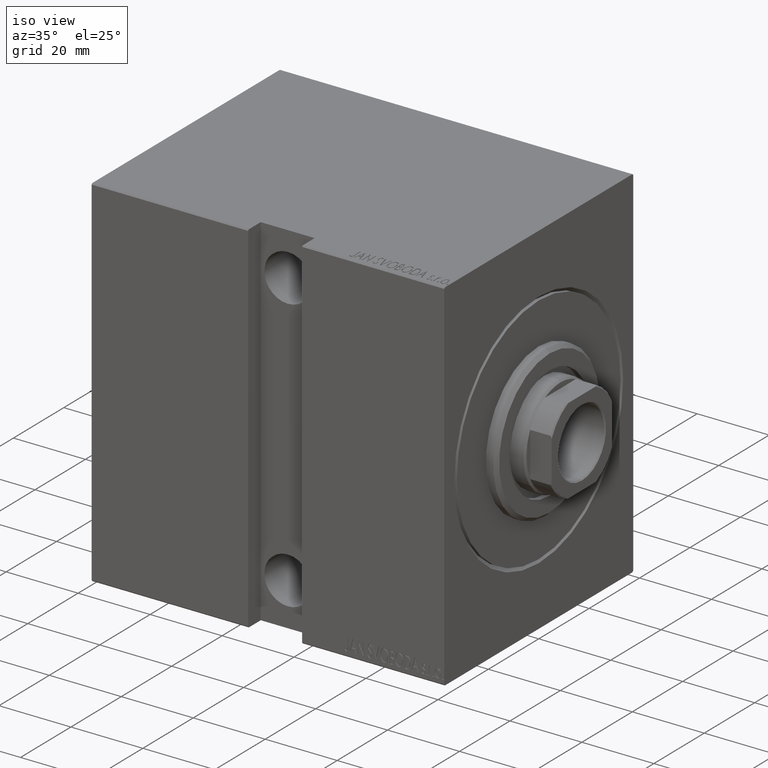
[diagram: clean part render]
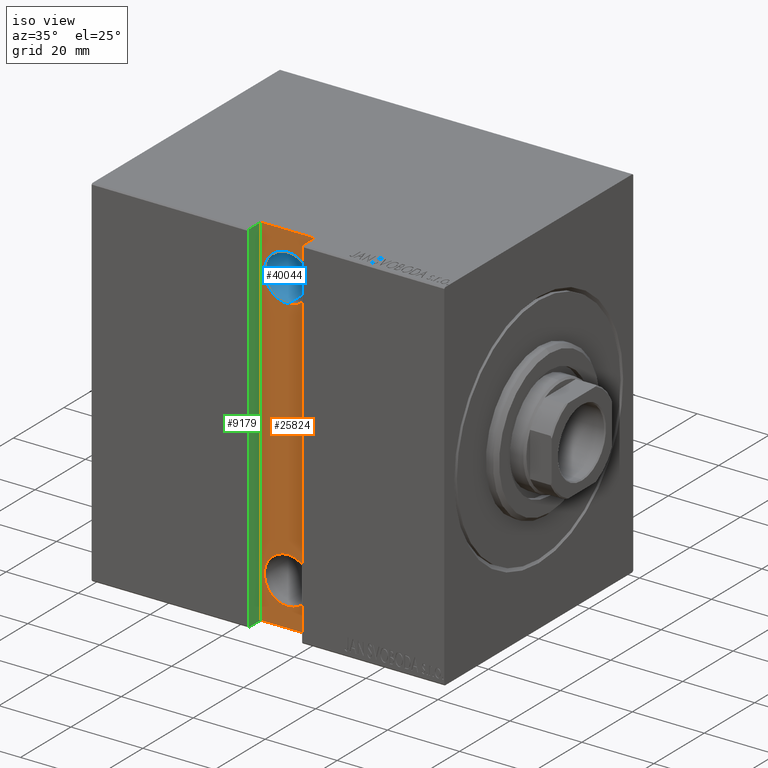
[diagram: same view with three faces highlighted in distinct colors, each labeled with its STEP entity id]
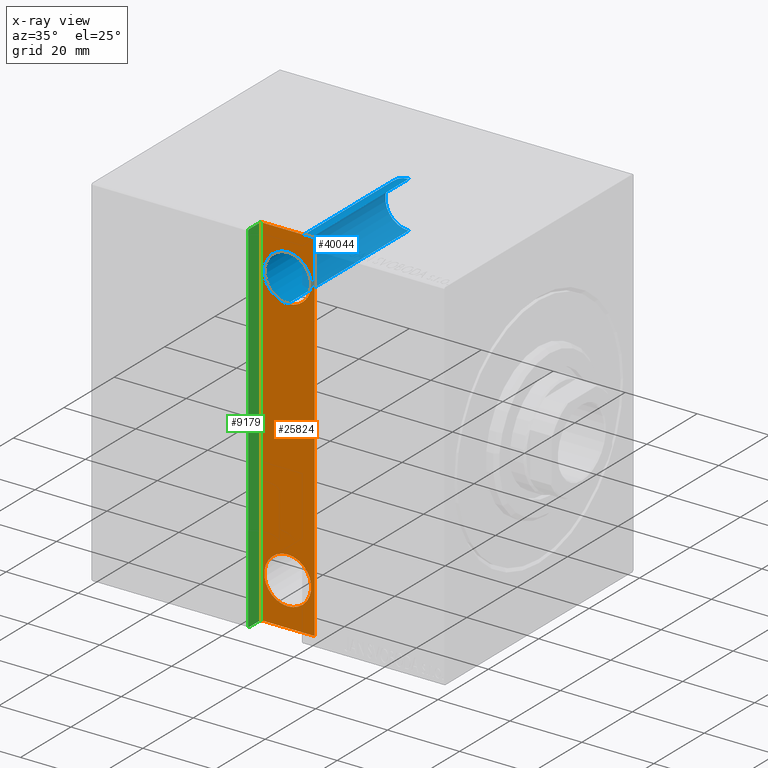
[diagram: x-ray of the same camera — body ghosted, the three highlighted faces saturated]
A machine part, iso view with three faces highlighted in distinct colors.
The next image is the same camera in x-ray (body ghosted, the three faces saturated) — at least one of them is partly hidden behind the body in this view.
Their STEP definitions:

[orange] entity #25824 — the highlighted planar face has unit normal (0, 1, 0).
#739 = LINE ( 'NONE', #24131, #28036 ) ;
#1564 = DIRECTION ( 'NONE',  ( 0.000000000000000000, -1.000000000000000000, 0.000000000000000000 ) ) ;
#1667 = AXIS2_PLACEMENT_3D ( 'NONE', #19981, #33214, #37094 ) ;
#3228 = LINE ( 'NONE', #33323, #28962 ) ;
#3659 = VERTEX_POINT ( 'NONE', #38447 ) ;
#4225 = DIRECTION ( 'NONE',  ( 0.000000000000000000, 0.000000000000000000, -1.000000000000000000 ) ) ;
#4503 = CIRCLE ( 'NONE', #13473, 6.499999999999999112 ) ;
#5838 = DIRECTION ( 'NONE',  ( 6.938893903907228378E-17, 0.000000000000000000, 1.000000000000000000 ) ) ;
#6257 = LINE ( 'NONE', #25978, #13938 ) ;
#6602 = DIRECTION ( 'NONE',  ( 0.000000000000000000, -1.000000000000000000, 0.000000000000000000 ) ) ;
#7028 = DIRECTION ( 'NONE',  ( 0.000000000000000000, -0.000000000000000000, -1.000000000000000000 ) ) ;
#7031 = CARTESIAN_POINT ( 'NONE',  ( 47.00000000000002132, 32.50000000000000000, 38.00000000000000000 ) ) ;
#8052 = EDGE_LOOP ( 'NONE', ( #39468, #10896 ) ) ;
#9894 = CARTESIAN_POINT ( 'NONE',  ( 47.00000000000002132, 32.50000000000000000, 31.50000000000000000 ) ) ;
#10896 = ORIENTED_EDGE ( 'NONE', *, *, #29354, .T. ) ;
#11239 = EDGE_CURVE ( 'NONE', #3659, #26708, #739, .T. ) ;
#12270 = AXIS2_PLACEMENT_3D ( 'NONE', #31341, #21357, #15701 ) ;
#12507 = EDGE_CURVE ( 'NONE', #31063, #17094, #42592, .T. ) ;
#13200 = EDGE_LOOP ( 'NONE', ( #25257, #34950 ) ) ;
#13414 = DIRECTION ( 'NONE',  ( -1.000000000000000000, 0.000000000000000000, 0.000000000000000000 ) ) ;
#13473 = AXIS2_PLACEMENT_3D ( 'NONE', #7031, #17641, #4225 ) ;
#13938 = VECTOR ( 'NONE', #5838, 1000.000000000000000 ) ;
#15392 = VECTOR ( 'NONE', #13414, 1000.000000000000000 ) ;
#15393 = ORIENTED_EDGE ( 'NONE', *, *, #40308, .T. ) ;
#15701 = DIRECTION ( 'NONE',  ( 0.000000000000000000, 0.000000000000000000, -1.000000000000000000 ) ) ;
#15778 = CARTESIAN_POINT ( 'NONE',  ( 39.50000000000000000, 32.50000000000000000, -50.00000000000000711 ) ) ;
#16055 = ORIENTED_EDGE ( 'NONE', *, *, #11239, .T. ) ;
#16167 = VERTEX_POINT ( 'NONE', #21546 ) ;
#17094 = VERTEX_POINT ( 'NONE', #42776 ) ;
#17297 = CARTESIAN_POINT ( 'NONE',  ( 54.50000000000001421, 32.50000000000000711, -50.00000000000000711 ) ) ;
#17641 = DIRECTION ( 'NONE',  ( 0.000000000000000000, -1.000000000000000000, 0.000000000000000000 ) ) ;
#18428 = EDGE_CURVE ( 'NONE', #17094, #31063, #42711, .T. ) ;
#19981 = CARTESIAN_POINT ( 'NONE',  ( 47.00000000000002132, 32.50000000000000000, 38.00000000000000000 ) ) ;
#20305 = CIRCLE ( 'NONE', #1667, 6.499999999999999112 ) ;
#21118 = AXIS2_PLACEMENT_3D ( 'NONE', #38139, #1564, #31863 ) ;
#21357 = DIRECTION ( 'NONE',  ( 0.000000000000000000, -1.000000000000000000, 0.000000000000000000 ) ) ;
#21497 = EDGE_CURVE ( 'NONE', #16167, #3659, #3228, .T. ) ;
#21546 = CARTESIAN_POINT ( 'NONE',  ( 39.50000000000000711, 32.50000000000000000, 49.99999999999999289 ) ) ;
#21593 = CARTESIAN_POINT ( 'NONE',  ( 47.00000000000002132, 32.50000000000000000, 44.50000000000000000 ) ) ;
#22985 = ORIENTED_EDGE ( 'NONE', *, *, #37751, .T. ) ;
#23070 = CARTESIAN_POINT ( 'NONE',  ( 0.000000000000000000, 32.50000000000000000, 0.000000000000000000 ) ) ;
#24131 = CARTESIAN_POINT ( 'NONE',  ( 54.50000000000000000, 32.50000000000000000, -50.00000000000000711 ) ) ;
#25257 = ORIENTED_EDGE ( 'NONE', *, *, #18428, .T. ) ;
#25824 = ADVANCED_FACE ( 'NONE', ( #29380, #36280, #32621 ), #42796, .F. ) ;
#25978 = CARTESIAN_POINT ( 'NONE',  ( 39.50000000000000000, 32.50000000000000000, -50.00000000000000711 ) ) ;
#26708 = VERTEX_POINT ( 'NONE', #17297 ) ;
#27172 = ORIENTED_EDGE ( 'NONE', *, *, #21497, .T. ) ;
#28036 = VECTOR ( 'NONE', #40150, 1000.000000000000000 ) ;
#28962 = VECTOR ( 'NONE', #38334, 1000.000000000000000 ) ;
#29354 = EDGE_CURVE ( 'NONE', #33557, #38798, #4503, .T. ) ;
#29380 = FACE_BOUND ( 'NONE', #8052, .T. ) ;
#29680 = VERTEX_POINT ( 'NONE', #15778 ) ;
#31063 = VERTEX_POINT ( 'NONE', #36247 ) ;
#31341 = CARTESIAN_POINT ( 'NONE',  ( 47.00000000000002132, 32.50000000000000000, -38.00000000000000000 ) ) ;
#31863 = DIRECTION ( 'NONE',  ( 0.000000000000000000, 0.000000000000000000, -1.000000000000000000 ) ) ;
#32621 = FACE_OUTER_BOUND ( 'NONE', #33096, .T. ) ;
#33096 = EDGE_LOOP ( 'NONE', ( #22985, #27172, #16055, #15393 ) ) ;
#33214 = DIRECTION ( 'NONE',  ( 0.000000000000000000, -1.000000000000000000, 0.000000000000000000 ) ) ;
#33323 = CARTESIAN_POINT ( 'NONE',  ( 54.50000000000001421, 32.50000000000000000, 49.99999999999999289 ) ) ;
#33347 = CARTESIAN_POINT ( 'NONE',  ( 54.50000000000000000, 32.50000000000000000, -50.00000000000000711 ) ) ;
#33557 = VERTEX_POINT ( 'NONE', #9894 ) ;
#33571 = LINE ( 'NONE', #33347, #15392 ) ;
#34950 = ORIENTED_EDGE ( 'NONE', *, *, #12507, .T. ) ;
#36247 = CARTESIAN_POINT ( 'NONE',  ( 47.00000000000002132, 32.50000000000000000, -44.50000000000000000 ) ) ;
#36280 = FACE_BOUND ( 'NONE', #13200, .T. ) ;
#37094 = DIRECTION ( 'NONE',  ( 0.000000000000000000, 0.000000000000000000, -1.000000000000000000 ) ) ;
#37751 = EDGE_CURVE ( 'NONE', #29680, #16167, #6257, .T. ) ;
#38139 = CARTESIAN_POINT ( 'NONE',  ( 47.00000000000002132, 32.50000000000000000, -38.00000000000000000 ) ) ;
#38334 = DIRECTION ( 'NONE',  ( 1.000000000000000000, -0.000000000000000000, -0.000000000000000000 ) ) ;
#38447 = CARTESIAN_POINT ( 'NONE',  ( 54.50000000000001421, 32.50000000000000000, 49.99999999999999289 ) ) ;
#38798 = VERTEX_POINT ( 'NONE', #21593 ) ;
#39400 = AXIS2_PLACEMENT_3D ( 'NONE', #23070, #6602, #7028 ) ;
#39468 = ORIENTED_EDGE ( 'NONE', *, *, #42742, .T. ) ;
#40150 = DIRECTION ( 'NONE',  ( -1.387778780781445676E-16, -0.000000000000000000, -1.000000000000000000 ) ) ;
#40308 = EDGE_CURVE ( 'NONE', #26708, #29680, #33571, .T. ) ;
#42592 = CIRCLE ( 'NONE', #21118, 6.499999999999999112 ) ;
#42711 = CIRCLE ( 'NONE', #12270, 6.499999999999999112 ) ;
#42742 = EDGE_CURVE ( 'NONE', #38798, #33557, #20305, .T. ) ;
#42776 = CARTESIAN_POINT ( 'NONE',  ( 47.00000000000002132, 32.50000000000000000, -31.50000000000000000 ) ) ;
#42796 = PLANE ( 'NONE',  #39400 ) ;

[blue] entity #40044 — the highlighted cylindrical surface (edge-blend (fillet) strip) has radius 6.5 mm, axis along (0, -1, 0).
#1336 = CARTESIAN_POINT ( 'NONE',  ( 47.00000000000002132, -37.50000000000003553, 44.50000000000000000 ) ) ;
#2833 = AXIS2_PLACEMENT_3D ( 'NONE', #25365, #38362, #4202 ) ;
#2985 = EDGE_CURVE ( 'NONE', #24314, #38798, #36829, .T. ) ;
#4202 = DIRECTION ( 'NONE',  ( 0.000000000000000000, -2.668805347656626678E-16, -1.000000000000000000 ) ) ;
#4225 = DIRECTION ( 'NONE',  ( 0.000000000000000000, 0.000000000000000000, -1.000000000000000000 ) ) ;
#4503 = CIRCLE ( 'NONE', #13473, 6.499999999999999112 ) ;
#6402 = AXIS2_PLACEMENT_3D ( 'NONE', #9989, #33188, #20386 ) ;
#6448 = EDGE_CURVE ( 'NONE', #13165, #33557, #36414, .T. ) ;
#7031 = CARTESIAN_POINT ( 'NONE',  ( 47.00000000000002132, 32.50000000000000000, 38.00000000000000000 ) ) ;
#7181 = FACE_OUTER_BOUND ( 'NONE', #12236, .T. ) ;
#9894 = CARTESIAN_POINT ( 'NONE',  ( 47.00000000000002132, 32.50000000000000000, 31.50000000000000000 ) ) ;
#9989 = CARTESIAN_POINT ( 'NONE',  ( 47.00000000000002132, -37.50000000000003553, 38.00000000000000000 ) ) ;
#10628 = VECTOR ( 'NONE', #22567, 1000.000000000000000 ) ;
#11988 = ORIENTED_EDGE ( 'NONE', *, *, #2985, .T. ) ;
#12236 = EDGE_LOOP ( 'NONE', ( #20617, #37568, #11988, #17982 ) ) ;
#13165 = VERTEX_POINT ( 'NONE', #36383 ) ;
#13462 = CYLINDRICAL_SURFACE ( 'NONE', #6402, 6.499999999999999112 ) ;
#13473 = AXIS2_PLACEMENT_3D ( 'NONE', #7031, #17641, #4225 ) ;
#17641 = DIRECTION ( 'NONE',  ( 0.000000000000000000, -1.000000000000000000, 0.000000000000000000 ) ) ;
#17982 = ORIENTED_EDGE ( 'NONE', *, *, #29354, .F. ) ;
#20386 = DIRECTION ( 'NONE',  ( 0.000000000000000000, 0.000000000000000000, 1.000000000000000000 ) ) ;
#20617 = ORIENTED_EDGE ( 'NONE', *, *, #6448, .F. ) ;
#21593 = CARTESIAN_POINT ( 'NONE',  ( 47.00000000000002132, 32.50000000000000000, 44.50000000000000000 ) ) ;
#22567 = DIRECTION ( 'NONE',  ( -0.000000000000000000, 1.000000000000000000, -0.000000000000000000 ) ) ;
#23214 = CARTESIAN_POINT ( 'NONE',  ( 47.00000000000002132, -15.49999999999999112, 44.50000000000000000 ) ) ;
#24314 = VERTEX_POINT ( 'NONE', #23214 ) ;
#24504 = DIRECTION ( 'NONE',  ( -0.000000000000000000, 1.000000000000000000, -0.000000000000000000 ) ) ;
#25365 = CARTESIAN_POINT ( 'NONE',  ( 47.00000000000002132, -15.49999999999999289, 38.00000000000000000 ) ) ;
#29354 = EDGE_CURVE ( 'NONE', #33557, #38798, #4503, .T. ) ;
#33188 = DIRECTION ( 'NONE',  ( -0.000000000000000000, 1.000000000000000000, -0.000000000000000000 ) ) ;
#33557 = VERTEX_POINT ( 'NONE', #9894 ) ;
#33973 = CIRCLE ( 'NONE', #2833, 6.499999999999999112 ) ;
#34506 = EDGE_CURVE ( 'NONE', #24314, #13165, #33973, .T. ) ;
#35455 = VECTOR ( 'NONE', #24504, 1000.000000000000000 ) ;
#35996 = CARTESIAN_POINT ( 'NONE',  ( 47.00000000000002132, -37.50000000000003553, 31.50000000000000000 ) ) ;
#36383 = CARTESIAN_POINT ( 'NONE',  ( 47.00000000000002132, -15.49999999999999467, 31.50000000000000000 ) ) ;
#36414 = LINE ( 'NONE', #35996, #10628 ) ;
#36829 = LINE ( 'NONE', #1336, #35455 ) ;
#37568 = ORIENTED_EDGE ( 'NONE', *, *, #34506, .F. ) ;
#38362 = DIRECTION ( 'NONE',  ( -0.000000000000000000, 1.000000000000000000, -1.963837897332234442E-16 ) ) ;
#38798 = VERTEX_POINT ( 'NONE', #21593 ) ;
#40044 = ADVANCED_FACE ( 'NONE', ( #7181 ), #13462, .F. ) ;

[green] entity #9179 — the highlighted planar face has unit normal (-1, 0, -0).
#739 = LINE ( 'NONE', #24131, #28036 ) ;
#1143 = VECTOR ( 'NONE', #28378, 1000.000000000000114 ) ;
#3020 = VECTOR ( 'NONE', #24239, 1000.000000000000000 ) ;
#3659 = VERTEX_POINT ( 'NONE', #38447 ) ;
#3818 = CARTESIAN_POINT ( 'NONE',  ( 54.50000000000000000, 37.50000000000000711, -49.70000000000000284 ) ) ;
#5579 = ORIENTED_EDGE ( 'NONE', *, *, #20079, .T. ) ;
#5690 = EDGE_CURVE ( 'NONE', #30701, #13801, #14470, .T. ) ;
#5911 = EDGE_CURVE ( 'NONE', #26708, #12707, #36949, .T. ) ;
#6844 = CARTESIAN_POINT ( 'NONE',  ( 54.50000000000000000, 32.50000000000000000, -50.00000000000000711 ) ) ;
#7280 = DIRECTION ( 'NONE',  ( -9.813077866773479853E-17, -0.7071067811865556774, -0.7071067811865392461 ) ) ;
#8638 = DIRECTION ( 'NONE',  ( 1.000000000000000000, 0.000000000000000000, -1.387778780781445676E-16 ) ) ;
#9179 = ADVANCED_FACE ( 'NONE', ( #31407 ), #31617, .F. ) ;
#9498 = ORIENTED_EDGE ( 'NONE', *, *, #11239, .F. ) ;
#9656 = LINE ( 'NONE', #23301, #19158 ) ;
#10690 = AXIS2_PLACEMENT_3D ( 'NONE', #18387, #8638, #29228 ) ;
#11239 = EDGE_CURVE ( 'NONE', #3659, #26708, #739, .T. ) ;
#11892 = LINE ( 'NONE', #18815, #1143 ) ;
#12707 = VERTEX_POINT ( 'NONE', #34001 ) ;
#12973 = ORIENTED_EDGE ( 'NONE', *, *, #19154, .T. ) ;
#13801 = VERTEX_POINT ( 'NONE', #20233 ) ;
#14470 = LINE ( 'NONE', #31585, #3020 ) ;
#17297 = CARTESIAN_POINT ( 'NONE',  ( 54.50000000000001421, 32.50000000000000711, -50.00000000000000711 ) ) ;
#18387 = CARTESIAN_POINT ( 'NONE',  ( 54.50000000000000000, 32.50000000000000000, -50.00000000000000711 ) ) ;
#18815 = CARTESIAN_POINT ( 'NONE',  ( 54.50000000000001421, 37.19999999999998153, 50.00000000000001421 ) ) ;
#19154 = EDGE_CURVE ( 'NONE', #3659, #29991, #9656, .T. ) ;
#19158 = VECTOR ( 'NONE', #39566, 1000.000000000000000 ) ;
#20079 = EDGE_CURVE ( 'NONE', #13801, #12707, #23310, .T. ) ;
#20106 = ORIENTED_EDGE ( 'NONE', *, *, #5690, .T. ) ;
#20233 = CARTESIAN_POINT ( 'NONE',  ( 54.50000000000000000, 37.50000000000000000, -49.70000000000000284 ) ) ;
#23301 = CARTESIAN_POINT ( 'NONE',  ( 54.50000000000001421, 32.50000000000000000, 49.99999999999999289 ) ) ;
#23310 = LINE ( 'NONE', #3818, #38596 ) ;
#23751 = VECTOR ( 'NONE', #40209, 1000.000000000000000 ) ;
#24131 = CARTESIAN_POINT ( 'NONE',  ( 54.50000000000000000, 32.50000000000000000, -50.00000000000000711 ) ) ;
#24239 = DIRECTION ( 'NONE',  ( -1.387778780781445676E-16, -0.000000000000000000, -1.000000000000000000 ) ) ;
#24283 = CARTESIAN_POINT ( 'NONE',  ( 54.50000000000001421, 37.50000000000000000, 49.70000000000000284 ) ) ;
#26708 = VERTEX_POINT ( 'NONE', #17297 ) ;
#28036 = VECTOR ( 'NONE', #40150, 1000.000000000000000 ) ;
#28378 = DIRECTION ( 'NONE',  ( -9.813077866773709115E-17, 0.7071067811865392461, -0.7071067811865556774 ) ) ;
#28757 = CARTESIAN_POINT ( 'NONE',  ( 54.50000000000001421, 37.19999999999998153, 49.99999999999999289 ) ) ;
#29228 = DIRECTION ( 'NONE',  ( -1.387778780781445676E-16, 0.000000000000000000, -1.000000000000000000 ) ) ;
#29689 = EDGE_CURVE ( 'NONE', #29991, #30701, #11892, .T. ) ;
#29991 = VERTEX_POINT ( 'NONE', #28757 ) ;
#30701 = VERTEX_POINT ( 'NONE', #24283 ) ;
#30753 = ORIENTED_EDGE ( 'NONE', *, *, #5911, .F. ) ;
#31407 = FACE_OUTER_BOUND ( 'NONE', #41502, .T. ) ;
#31585 = CARTESIAN_POINT ( 'NONE',  ( 54.50000000000000000, 37.50000000000000000, -50.00000000000000711 ) ) ;
#31617 = PLANE ( 'NONE',  #10690 ) ;
#34001 = CARTESIAN_POINT ( 'NONE',  ( 54.50000000000000000, 37.19999999999998863, -50.00000000000000711 ) ) ;
#36949 = LINE ( 'NONE', #6844, #23751 ) ;
#38447 = CARTESIAN_POINT ( 'NONE',  ( 54.50000000000001421, 32.50000000000000000, 49.99999999999999289 ) ) ;
#38596 = VECTOR ( 'NONE', #7280, 1000.000000000000114 ) ;
#39566 = DIRECTION ( 'NONE',  ( -0.000000000000000000, 1.000000000000000000, -0.000000000000000000 ) ) ;
#39602 = ORIENTED_EDGE ( 'NONE', *, *, #29689, .T. ) ;
#40150 = DIRECTION ( 'NONE',  ( -1.387778780781445676E-16, -0.000000000000000000, -1.000000000000000000 ) ) ;
#40209 = DIRECTION ( 'NONE',  ( -0.000000000000000000, 1.000000000000000000, -0.000000000000000000 ) ) ;
#41502 = EDGE_LOOP ( 'NONE', ( #20106, #5579, #30753, #9498, #12973, #39602 ) ) ;